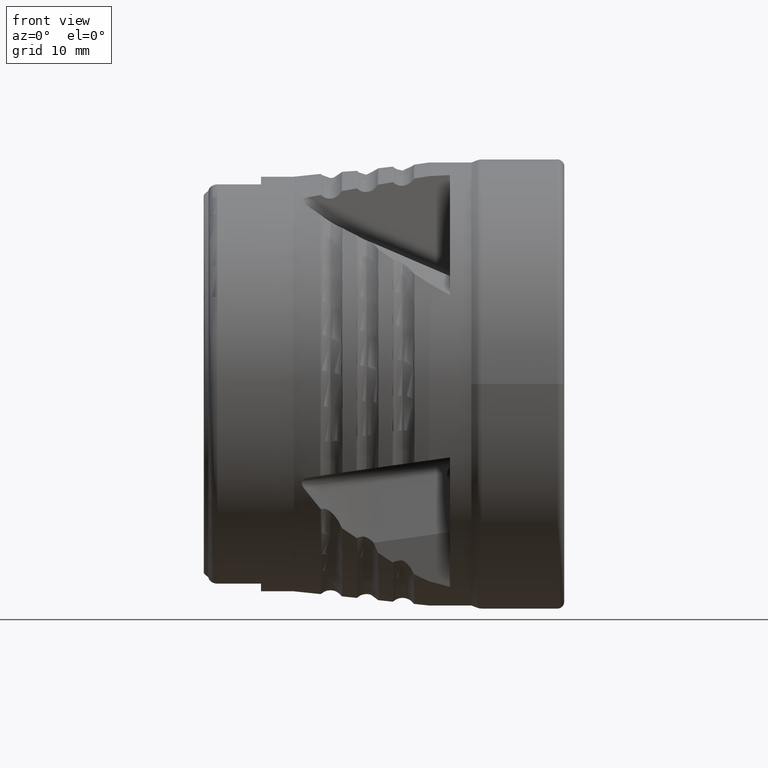
[diagram: clean part render]
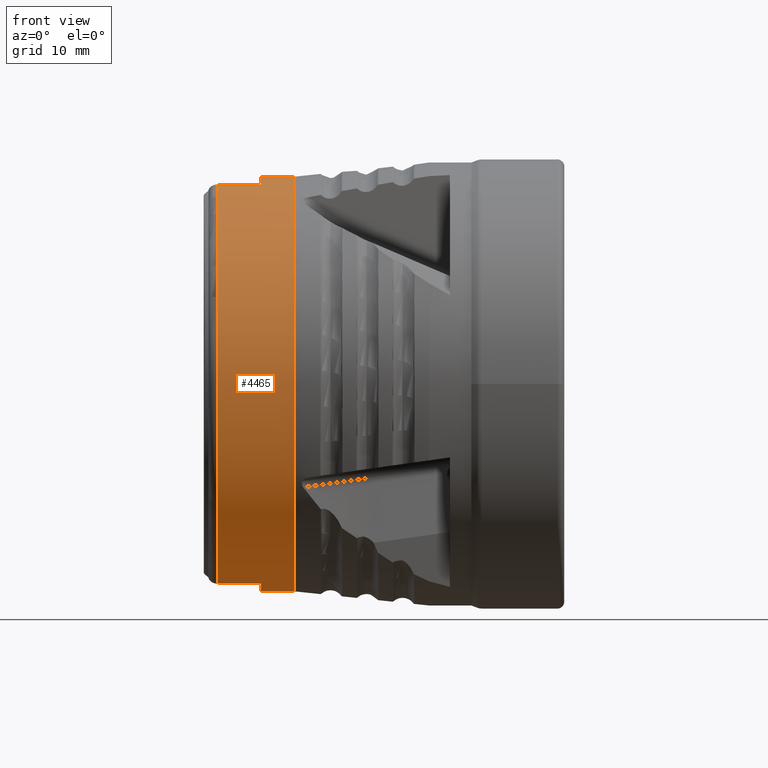
[diagram: same view with one face highlighted and labeled with its STEP entity id]
A machine part, front view. The second image highlights one B-rep face of the part: STEP entity #4465.
In plain terms, the highlighted cylindrical surface (partial cylindrical patch) has radius 23 mm, axis along (1, -0, -0).
Its self-contained STEP definition (entity closure, byte-faithful):
#89 = DIRECTION ( 'NONE',  ( 1.000000000000000000, -0.0000000000000000000, -0.0000000000000000000 ) ) ;
#185 = LINE ( 'NONE', #340, #3477 ) ;
#340 = CARTESIAN_POINT ( 'NONE',  ( 0.0000000000000000000, 0.0000000000000000000, -22.99999999999999300 ) ) ;
#1059 = EDGE_CURVE ( 'NONE', #4534, #4750, #185, .T. ) ;
#1890 = CARTESIAN_POINT ( 'NONE',  ( -36.75000000000000000, -6.208772319603621500, -22.14613163248434100 ) ) ;
#1913 = CARTESIAN_POINT ( 'NONE',  ( -36.75000000000000000, -6.208772319603626000, 22.14613163248434100 ) ) ;
#1938 = CARTESIAN_POINT ( 'NONE',  ( -31.90000000000004100, -6.208772319603618900, -22.14613163248434100 ) ) ;
#1944 = LINE ( 'NONE', #1945, #6138 ) ;
#1945 = CARTESIAN_POINT ( 'NONE',  ( -9.758495738851982800E-016, -6.208772319603620600, 22.14613163248434100 ) ) ;
#1946 = LINE ( 'NONE', #1952, #6129 ) ;
#1947 = CARTESIAN_POINT ( 'NONE',  ( -31.90000000000004100, 0.0000000000000000000, 0.0000000000000000000 ) ) ;
#1948 = DIRECTION ( 'NONE',  ( -1.000000000000000000, 0.0000000000000000000, -0.0000000000000000000 ) ) ;
#1949 = DIRECTION ( 'NONE',  ( 0.0000000000000000000, 5.329070518200750600E-015, -1.000000000000000000 ) ) ;
#1951 = DIRECTION ( 'NONE',  ( 1.000000000000000000, -0.0000000000000000000, -0.0000000000000000000 ) ) ;
#1952 = CARTESIAN_POINT ( 'NONE',  ( -9.758495738851986800E-016, -6.208772319603615300, -22.14613163248433700 ) ) ;
#1953 = DIRECTION ( 'NONE',  ( -1.000000000000000000, 0.0000000000000000000, 0.0000000000000000000 ) ) ;
#1955 = CARTESIAN_POINT ( 'NONE',  ( -31.90000000000004100, 0.0000000000000000000, 0.0000000000000000000 ) ) ;
#1956 = DIRECTION ( 'NONE',  ( 1.000000000000000000, -0.0000000000000000000, -0.0000000000000000000 ) ) ;
#1957 = DIRECTION ( 'NONE',  ( 0.0000000000000000000, 5.329070518200750600E-015, 1.000000000000000000 ) ) ;
#3477 = VECTOR ( 'NONE', #89, 1000.000000000000000 ) ;
#3528 = CIRCLE ( 'NONE', #3530, 22.99999999999999300 ) ;
#3530 = AXIS2_PLACEMENT_3D ( 'NONE', #6342, #6343, #6344 ) ;
#3568 = VECTOR ( 'NONE', #6462, 1000.000000000000000 ) ;
#3586 = CIRCLE ( 'NONE', #3588, 22.99999999999999300 ) ;
#3588 = AXIS2_PLACEMENT_3D ( 'NONE', #6520, #6521, #6522 ) ;
#3648 = AXIS2_PLACEMENT_3D ( 'NONE', #6749, #6746, #6751 ) ;
#3660 = EDGE_LOOP ( 'NONE', ( #5801, #5635, #5333, #5514, #5289, #5612, #5741, #5633 ) ) ;
#3808 = VERTEX_POINT ( 'NONE', #1890 ) ;
#3833 = VERTEX_POINT ( 'NONE', #1913 ) ;
#3858 = VERTEX_POINT ( 'NONE', #1938 ) ;
#4035 = EDGE_CURVE ( 'NONE', #4766, #4545, #6142, .T. ) ;
#4036 = EDGE_CURVE ( 'NONE', #3833, #4766, #1944, .T. ) ;
#4037 = EDGE_CURVE ( 'NONE', #3858, #3808, #1946, .T. ) ;
#4038 = EDGE_CURVE ( 'NONE', #3858, #4534, #6105, .T. ) ;
#4365 = EDGE_CURVE ( 'NONE', #3833, #3808, #3528, .T. ) ;
#4396 = EDGE_CURVE ( 'NONE', #4545, #4659, #6460, .T. ) ;
#4413 = EDGE_CURVE ( 'NONE', #4659, #4750, #3586, .T. ) ;
#4465 = ADVANCED_FACE ( 'NONE', ( #6744 ), #6748, .T. ) ;
#4534 = VERTEX_POINT ( 'NONE', #6825 ) ;
#4545 = VERTEX_POINT ( 'NONE', #6854 ) ;
#4659 = VERTEX_POINT ( 'NONE', #6954 ) ;
#4750 = VERTEX_POINT ( 'NONE', #7043 ) ;
#4766 = VERTEX_POINT ( 'NONE', #7056 ) ;
#5289 = ORIENTED_EDGE ( 'NONE', *, *, #4037, .F. ) ;
#5333 = ORIENTED_EDGE ( 'NONE', *, *, #4036, .F. ) ;
#5514 = ORIENTED_EDGE ( 'NONE', *, *, #4365, .T. ) ;
#5612 = ORIENTED_EDGE ( 'NONE', *, *, #4038, .T. ) ;
#5633 = ORIENTED_EDGE ( 'NONE', *, *, #4413, .F. ) ;
#5635 = ORIENTED_EDGE ( 'NONE', *, *, #4035, .F. ) ;
#5741 = ORIENTED_EDGE ( 'NONE', *, *, #1059, .T. ) ;
#5801 = ORIENTED_EDGE ( 'NONE', *, *, #4396, .F. ) ;
#6105 = CIRCLE ( 'NONE', #6135, 22.99999999999999300 ) ;
#6129 = VECTOR ( 'NONE', #1953, 1000.000000000000000 ) ;
#6135 = AXIS2_PLACEMENT_3D ( 'NONE', #1955, #1956, #1957 ) ;
#6138 = VECTOR ( 'NONE', #1951, 1000.000000000000000 ) ;
#6140 = AXIS2_PLACEMENT_3D ( 'NONE', #1947, #1948, #1949 ) ;
#6142 = CIRCLE ( 'NONE', #6140, 22.99999999999999300 ) ;
#6342 = CARTESIAN_POINT ( 'NONE',  ( -36.75000000000000000, 0.0000000000000000000, 0.0000000000000000000 ) ) ;
#6343 = DIRECTION ( 'NONE',  ( 1.000000000000000000, -0.0000000000000000000, -0.0000000000000000000 ) ) ;
#6344 = DIRECTION ( 'NONE',  ( 0.0000000000000000000, 0.0000000000000000000, -1.000000000000000000 ) ) ;
#6460 = LINE ( 'NONE', #6461, #3568 ) ;
#6461 = CARTESIAN_POINT ( 'NONE',  ( 0.0000000000000000000, 2.816687638038911600E-015, 22.99999999999999300 ) ) ;
#6462 = DIRECTION ( 'NONE',  ( 1.000000000000000000, -0.0000000000000000000, -0.0000000000000000000 ) ) ;
#6520 = CARTESIAN_POINT ( 'NONE',  ( -28.24999999999999600, 0.0000000000000000000, 0.0000000000000000000 ) ) ;
#6521 = DIRECTION ( 'NONE',  ( 1.000000000000000000, -0.0000000000000000000, -0.0000000000000000000 ) ) ;
#6522 = DIRECTION ( 'NONE',  ( 0.0000000000000000000, 0.0000000000000000000, -1.000000000000000000 ) ) ;
#6744 = FACE_OUTER_BOUND ( 'NONE', #3660, .T. ) ;
#6746 = DIRECTION ( 'NONE',  ( 1.000000000000000000, -0.0000000000000000000, -0.0000000000000000000 ) ) ;
#6748 = CYLINDRICAL_SURFACE ( 'NONE', #3648, 22.99999999999999300 ) ;
#6749 = CARTESIAN_POINT ( 'NONE',  ( 0.0000000000000000000, 0.0000000000000000000, 0.0000000000000000000 ) ) ;
#6751 = DIRECTION ( 'NONE',  ( 0.0000000000000000000, 0.0000000000000000000, -1.000000000000000000 ) ) ;
#6825 = CARTESIAN_POINT ( 'NONE',  ( -31.90000000000004100, 0.0000000000000000000, -22.99999999999999300 ) ) ;
#6854 = CARTESIAN_POINT ( 'NONE',  ( -31.90000000000004100, 2.816687638038911600E-015, 22.99999999999999300 ) ) ;
#6954 = CARTESIAN_POINT ( 'NONE',  ( -28.24999999999999600, 2.835392799705802600E-015, 22.99999999999999300 ) ) ;
#7043 = CARTESIAN_POINT ( 'NONE',  ( -28.24999999999999600, 0.0000000000000000000, -22.99999999999999300 ) ) ;
#7056 = CARTESIAN_POINT ( 'NONE',  ( -31.90000000000004100, -6.208772319603620600, 22.14613163248433700 ) ) ;